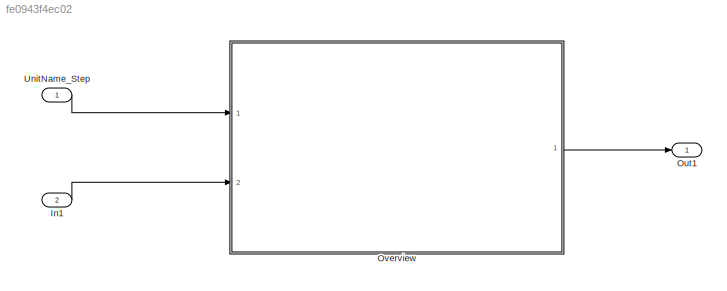
MODEL slx_fe0943f4ec02
KIND model
CONFIG AbsTol = auto
CONFIG EnableMultiTasking = off
CONFIG FixedStep = 0.001
CONFIG MaxStep = auto
CONFIG MinStep = auto
CONFIG RelTol = 1e-3
CONFIG SampleTimeConstraint = Unconstrained
CONFIG SolverName = FixedStepDiscrete
CONFIG StartTime = 0.0
CONFIG StopTime = Inf
BLOCK [Inport] In1
  Port = 2
BLOCK [Outport] Out1
  VectorParamsAs1DForOutWhenUnconnected = off
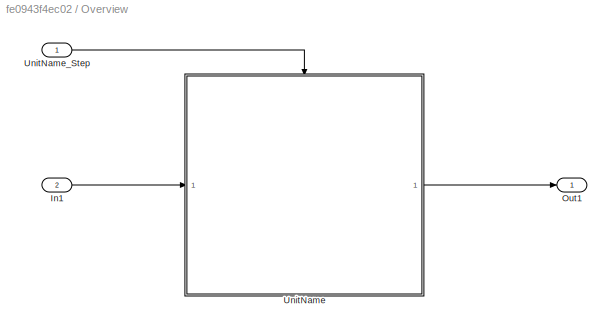
BLOCK [SubSystem] Overview
  Ports = [2, 1]
  RequestExecContextInheritance = off
BLOCK [Inport] Overview/In1
  Port = 2
BLOCK [Outport] Overview/Out1
  VectorParamsAs1DForOutWhenUnconnected = off
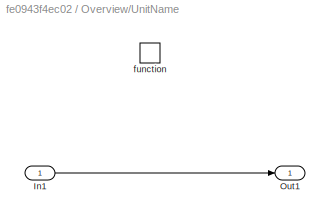
BLOCK [SubSystem] Overview/UnitName
  Ports = [1, 1, 0, 1]
  RequestExecContextInheritance = off
  TreatAsAtomicUnit = on
BLOCK [Inport] Overview/UnitName/In1
BLOCK [Outport] Overview/UnitName/Out1
  VectorParamsAs1DForOutWhenUnconnected = off
BLOCK [TriggerPort] Overview/UnitName/function
  Ports = []
  StatesWhenEnabling = held
  TriggerType = function-call
  VariantControl = Variant
BLOCK [Inport] Overview/UnitName_Step
BLOCK [Inport] UnitName_Step
  OutputFunctionCall = on
LINE In1:1 -> Overview:2
LINE Overview/In1:1 -> Overview/UnitName:1
LINE Overview/UnitName/In1:1 -> Overview/UnitName/Out1:1
LINE Overview/UnitName:1 -> Overview/Out1:1
LINE Overview/UnitName_Step:1 -> Overview/UnitName:trigger
LINE Overview:1 -> Out1:1
LINE UnitName_Step:1 -> Overview:1
